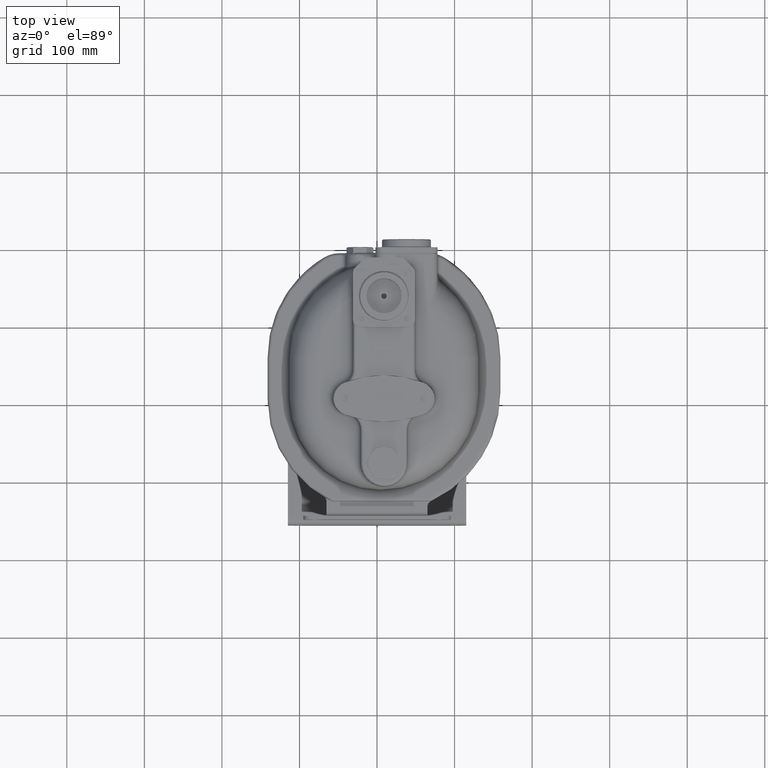
[diagram: clean part render]
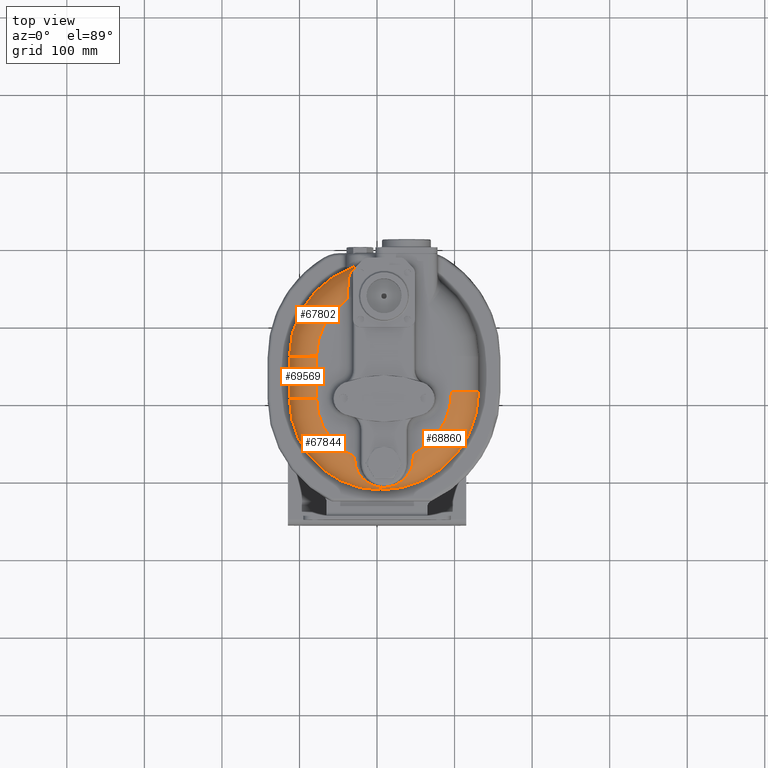
[diagram: same view with one multi-face feature highlighted, each face labeled with its STEP entity id]
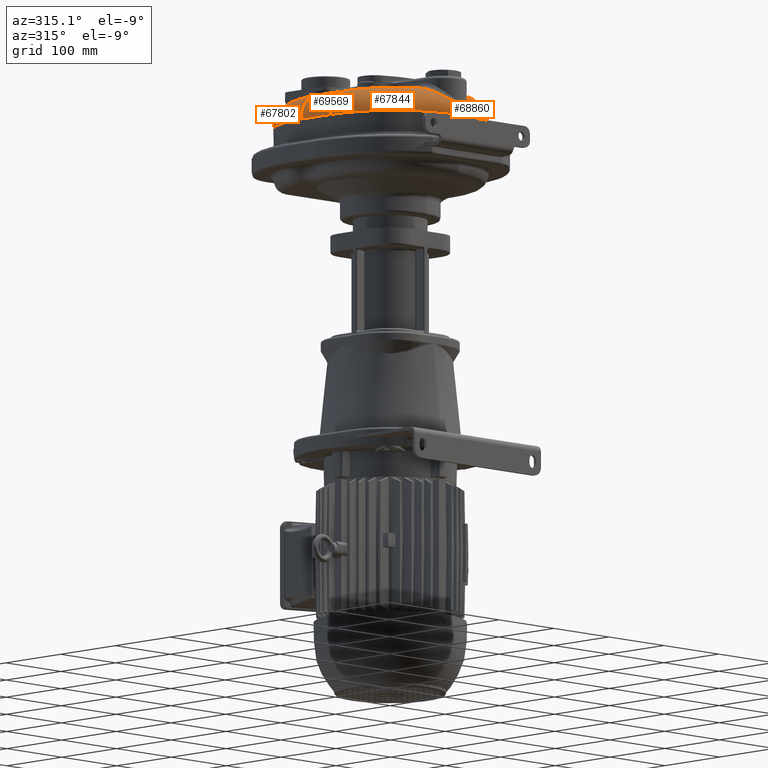
[diagram: same view with one multi-face feature highlighted, each face labeled with its STEP entity id]
A machine part, top view. The highlighted faces form ONE feature: a constant-radius fillet chain: 4 tangent blend faces with common blend radius 35 mm. The faces share edges in the B-rep.
A second angle (auxiliary view) of the same feature is appended — it is thin or edge-on in the first view.
Their STEP definitions:
[1] entity #69569 (Cylinder):
#11907=DIRECTION('',(0.E0,-1.E0,0.E0));
#11908=VECTOR('',#11907,5.45E1);
#11909=CARTESIAN_POINT('',(-7.8E1,5.E1,7.9E1));
#11910=LINE('',#11909,#11908);
#12002=CARTESIAN_POINT('',(-7.8E1,-4.5E0,4.4E1));
#12003=DIRECTION('',(0.E0,-1.E0,0.E0));
#12004=DIRECTION('',(0.E0,0.E0,1.E0));
#12005=AXIS2_PLACEMENT_3D('',#12002,#12003,#12004);
#13197=DIRECTION('',(0.E0,-1.E0,0.E0));
#13198=VECTOR('',#13197,5.45E1);
#13199=CARTESIAN_POINT('',(-1.13E2,5.E1,4.4E1));
#13200=LINE('',#13199,#13198);
#13294=CARTESIAN_POINT('',(-7.8E1,5.E1,4.4E1));
#13295=DIRECTION('',(0.E0,-1.E0,0.E0));
#13296=DIRECTION('',(0.E0,0.E0,1.E0));
#13297=AXIS2_PLACEMENT_3D('',#13294,#13295,#13296);
#45949=CARTESIAN_POINT('',(-1.13E2,-4.5E0,4.4E1));
#45950=VERTEX_POINT('',#45949);
#45951=CARTESIAN_POINT('',(-7.8E1,5.E1,7.9E1));
#45952=CARTESIAN_POINT('',(-7.8E1,-4.5E0,7.9E1));
#45953=VERTEX_POINT('',#45951);
#45954=VERTEX_POINT('',#45952);
#45955=CARTESIAN_POINT('',(-1.13E2,5.E1,4.4E1));
#45956=VERTEX_POINT('',#45955);
#69558=CARTESIAN_POINT('',(-7.8E1,5.00218436E1,4.4E1));
#69559=DIRECTION('',(0.E0,-1.E0,0.E0));
#69560=DIRECTION('',(0.E0,0.E0,1.E0));
#69561=AXIS2_PLACEMENT_3D('',#69558,#69559,#69560);
#69562=CYLINDRICAL_SURFACE('',#69561,3.5E1);
#69563=ORIENTED_EDGE('',*,*,#67810,.T.);
#69564=ORIENTED_EDGE('',*,*,#67840,.T.);
#69565=ORIENTED_EDGE('',*,*,#69231,.F.);
#69566=ORIENTED_EDGE('',*,*,#67791,.F.);
#69567=EDGE_LOOP('',(#69563,#69564,#69565,#69566));
#69568=FACE_OUTER_BOUND('',#69567,.F.);
#69569=ADVANCED_FACE('',(#69568),#69562,.T.);
#12006=CIRCLE('',#12005,3.5E1);
#13298=CIRCLE('',#13297,3.5E1);
#67791=EDGE_CURVE('',#45953,#45956,#13298,.T.);
#67810=EDGE_CURVE('',#45953,#45954,#11910,.T.);
#67840=EDGE_CURVE('',#45954,#45950,#12006,.T.);
#69231=EDGE_CURVE('',#45956,#45950,#13200,.T.);
[2] entity #67802 (Torus):
#11793=CARTESIAN_POINT('',(-2.966375237441E1,1.657113402054E2,4.4E1));
#11794=CARTESIAN_POINT('',(-2.966375236081E1,1.657113401667E2,
4.434957833842E1));
#11795=CARTESIAN_POINT('',(-2.966101336535E1,1.657012106064E2,
4.504874633726E1));
#11796=CARTESIAN_POINT('',(-2.964868928718E1,1.656556385600E2,
4.609659013645E1));
#11797=CARTESIAN_POINT('',(-2.962815736619E1,1.655797272717E2,
4.714258651501E1));
#11798=CARTESIAN_POINT('',(-2.959943065116E1,1.654735466195E2,
4.818576929881E1));
#11799=CARTESIAN_POINT('',(-2.956252766429E1,1.653371913621E2,
4.922521540629E1));
#11800=CARTESIAN_POINT('',(-2.951747190141E1,1.651707843868E2,
5.025999203339E1));
#11801=CARTESIAN_POINT('',(-2.946429225014E1,1.649744750210E2,
5.128917637721E1));
#11802=CARTESIAN_POINT('',(-2.940302279589E1,1.647484397740E2,
5.231184602211E1));
#11803=CARTESIAN_POINT('',(-2.933370600991E1,1.644928931323E2,
5.332704468145E1));
#11804=CARTESIAN_POINT('',(-2.925638588485E1,1.642080626150E2,
5.433388834581E1));
#11805=CARTESIAN_POINT('',(-2.917110723913E1,1.638941847211E2,
5.533153917670E1));
#11806=CARTESIAN_POINT('',(-2.910898696775E1,1.636657618676E2,
5.598989099765E1));
#11807=CARTESIAN_POINT('',(-2.907662046386E1,1.635468087233E2,
5.631723301976E1));
#11847=CARTESIAN_POINT('',(-3.679927425922E1,1.501859124420E2,
7.024320591176E1));
#11848=CARTESIAN_POINT('',(-3.678679080129E1,1.503833059043E2,
7.008936662543E1));
#11849=CARTESIAN_POINT('',(-3.675404578181E1,1.507809898017E2,
6.977582583773E1));
#11850=CARTESIAN_POINT('',(-3.668081801128E1,1.513854118228E2,
6.928784475528E1));
#11851=CARTESIAN_POINT('',(-3.658255649459E1,1.519976634908E2,
6.878150201866E1));
#11852=CARTESIAN_POINT('',(-3.645849701325E1,1.526164760535E2,
6.825707690721E1));
#11853=CARTESIAN_POINT('',(-3.630784293126E1,1.532410213371E2,
6.771450696850E1));
#11854=CARTESIAN_POINT('',(-3.612988250461E1,1.538701409345E2,
6.715402706200E1));
#11855=CARTESIAN_POINT('',(-3.592395811686E1,1.545026441071E2,
6.657593989711E1));
#11856=CARTESIAN_POINT('',(-3.568950169469E1,1.551371975189E2,
6.598072595652E1));
#11857=CARTESIAN_POINT('',(-3.542604698785E1,1.557723589549E2,
6.536903684485E1));
#11858=CARTESIAN_POINT('',(-3.513325521171E1,1.564065610338E2,
6.474173543882E1));
#11859=CARTESIAN_POINT('',(-3.481094208436E1,1.570381095218E2,
6.409992906651E1));
#11860=CARTESIAN_POINT('',(-3.445911347495E1,1.576651734967E2,
6.344501681936E1));
#11861=CARTESIAN_POINT('',(-3.407801243393E1,1.582857713564E2,
6.277874977549E1));
#11862=CARTESIAN_POINT('',(-3.366817999968E1,1.588977538211E2,
6.210330450572E1));
#11863=CARTESIAN_POINT('',(-3.323054062371E1,1.594987755904E2,
6.142138109702E1));
#11864=CARTESIAN_POINT('',(-3.276651193871E1,1.600862664021E2,
6.073631529242E1));
#11865=CARTESIAN_POINT('',(-3.227815604076E1,1.606573905109E2,
6.005221733635E1));
#11866=CARTESIAN_POINT('',(-3.176833786282E1,1.612090419004E2,
5.937407502138E1));
#11867=CARTESIAN_POINT('',(-3.124096160516E1,1.617378006045E2,
5.870790053412E1));
#11868=CARTESIAN_POINT('',(-3.070108910804E1,1.622400519131E2,
5.806064414154E1));
#11869=CARTESIAN_POINT('',(-3.015494719204E1,1.627121908599E2,
5.743992744125E1));
#11870=CARTESIAN_POINT('',(-2.960998711353E1,1.631506945152E2,
5.685381569152E1));
#11871=CARTESIAN_POINT('',(-2.925333163477E1,1.634184140525E2,
5.649157911724E1));
#11872=CARTESIAN_POINT('',(-2.907662046386E1,1.635468087233E2,
5.631723301976E1));
#11874=CARTESIAN_POINT('',(-3.9E1,1.225603197348E2,7.9E1));
#11875=CARTESIAN_POINT('',(-3.895126608389E1,1.230559121598E2,
7.899999997724E1));
#11876=CARTESIAN_POINT('',(-3.885590399843E1,1.240367674880E2,
7.898718471487E1));
#11877=CARTESIAN_POINT('',(-3.871924204616E1,1.254740125687E2,
7.893093955727E1));
#11878=CARTESIAN_POINT('',(-3.858846041353E1,1.268799581375E2,
7.883896024371E1));
#11879=CARTESIAN_POINT('',(-3.846326110825E1,1.282554497111E2,
7.871242770215E1));
#11880=CARTESIAN_POINT('',(-3.834332879766E1,1.296016208048E2,
7.855242723732E1));
#11881=CARTESIAN_POINT('',(-3.822839045164E1,1.309192868268E2,
7.835997035427E1));
#11882=CARTESIAN_POINT('',(-3.811819132890E1,1.322091792597E2,
7.813600100963E1));
#11883=CARTESIAN_POINT('',(-3.801249891054E1,1.334718966573E2,
7.788140805897E1));
#11884=CARTESIAN_POINT('',(-3.791109889812E1,1.347079381183E2,
7.759703322424E1));
#11885=CARTESIAN_POINT('',(-3.781379367657E1,1.359177124953E2,
7.728367837305E1));
#11886=CARTESIAN_POINT('',(-3.772040041433E1,1.371015517605E2,
7.694211142033E1));
#11887=CARTESIAN_POINT('',(-3.763074960528E1,1.382597206291E2,
7.657307146579E1));
#11888=CARTESIAN_POINT('',(-3.754468391295E1,1.393924253905E2,
7.617727308662E1));
#11889=CARTESIAN_POINT('',(-3.746205692959E1,1.404998213283E2,
7.575541007652E1));
#11890=CARTESIAN_POINT('',(-3.738273222751E1,1.415820191490E2,
7.530815866745E1));
#11891=CARTESIAN_POINT('',(-3.730658247146E1,1.426390908407E2,
7.483618016824E1));
#11892=CARTESIAN_POINT('',(-3.723348871801E1,1.436710737335E2,
7.434012381088E1));
#11893=CARTESIAN_POINT('',(-3.716333953477E1,1.446779777396E2,
7.382062727679E1));
#11894=CARTESIAN_POINT('',(-3.709603100248E1,1.456597805700E2,
7.327832312476E1));
#11895=CARTESIAN_POINT('',(-3.703146560179E1,1.466164386239E2,
7.271383677142E1));
#11896=CARTESIAN_POINT('',(-3.696955216743E1,1.475478856268E2,
7.212779144614E1));
#11897=CARTESIAN_POINT('',(-3.691020302553E1,1.484540654136E2,
7.152078688202E1));
#11898=CARTESIAN_POINT('',(-3.685334140992E1,1.493348354245E2,
7.089347246838E1));
#11899=CARTESIAN_POINT('',(-3.681703395525E1,1.499051039739E2,
7.046205458103E1));
#11900=CARTESIAN_POINT('',(-3.679927425922E1,1.501859124420E2,
7.024320591176E1));
#11911=CARTESIAN_POINT('',(9.E0,5.E1,7.9E1));
#11912=DIRECTION('',(0.E0,0.E0,1.E0));
#11913=DIRECTION('',(-5.517241379280E-1,8.340266636191E-1,0.E0));
#11914=AXIS2_PLACEMENT_3D('',#11911,#11912,#11913);
#13254=CARTESIAN_POINT('',(9.E0,5.E1,4.4E1));
#13255=DIRECTION('',(0.E0,0.E0,1.E0));
#13256=DIRECTION('',(-3.169160030710E-1,9.484536082474E-1,0.E0));
#13257=AXIS2_PLACEMENT_3D('',#13254,#13255,#13256);
#13294=CARTESIAN_POINT('',(-7.8E1,5.E1,4.4E1));
#13295=DIRECTION('',(0.E0,-1.E0,0.E0));
#13296=DIRECTION('',(0.E0,0.E0,1.E0));
#13297=AXIS2_PLACEMENT_3D('',#13294,#13295,#13296);
#45951=CARTESIAN_POINT('',(-7.8E1,5.E1,7.9E1));
#45953=VERTEX_POINT('',#45951);
#45955=CARTESIAN_POINT('',(-1.13E2,5.E1,4.4E1));
#45956=VERTEX_POINT('',#45955);
#45957=CARTESIAN_POINT('',(-2.966375237466E1,1.657113402062E2,4.4E1));
#45958=VERTEX_POINT('',#45957);
#45963=CARTESIAN_POINT('',(-3.899999999974E1,1.225603197349E2,7.9E1));
#45964=VERTEX_POINT('',#45963);
#45965=VERTEX_POINT('',#11807);
#46076=VERTEX_POINT('',#11900);
#67784=CARTESIAN_POINT('',(9.E0,5.E1,4.4E1));
#67785=DIRECTION('',(0.E0,0.E0,-1.E0));
#67786=DIRECTION('',(8.129831895587E-1,-5.822871572472E-1,0.E0));
#67787=AXIS2_PLACEMENT_3D('',#67784,#67785,#67786);
#67788=TOROIDAL_SURFACE('',#67787,8.7E1,3.5E1);
#67790=ORIENTED_EDGE('',*,*,#67789,.T.);
#67792=ORIENTED_EDGE('',*,*,#67791,.T.);
#67794=ORIENTED_EDGE('',*,*,#67793,.F.);
#67795=ORIENTED_EDGE('',*,*,#67772,.T.);
#67797=ORIENTED_EDGE('',*,*,#67796,.F.);
#67799=ORIENTED_EDGE('',*,*,#67798,.F.);
#67800=EDGE_LOOP('',(#67790,#67792,#67794,#67795,#67797,#67799));
#67801=FACE_OUTER_BOUND('',#67800,.F.);
#67802=ADVANCED_FACE('',(#67801),#67788,.T.);
#11808=B_SPLINE_CURVE_WITH_KNOTS('',3,(#11793,#11794,#11795,#11796,#11797,
#11798,#11799,#11800,#11801,#11802,#11803,#11804,#11805,#11806,#11807),
.UNSPECIFIED.,.F.,.F.,(4,1,1,1,1,1,1,1,1,1,1,1,4),(0.E0,8.333333333333E-2,
1.666666666667E-1,2.5E-1,3.333333333333E-1,4.166666666667E-1,5.E-1,
5.833333333333E-1,6.666666666667E-1,7.5E-1,8.333333333333E-1,9.166666666667E-1,
1.E0),.UNSPECIFIED.);
#11873=B_SPLINE_CURVE_WITH_KNOTS('',3,(#11847,#11848,#11849,#11850,#11851,
#11852,#11853,#11854,#11855,#11856,#11857,#11858,#11859,#11860,#11861,#11862,
#11863,#11864,#11865,#11866,#11867,#11868,#11869,#11870,#11871,#11872),
.UNSPECIFIED.,.F.,.F.,(4,1,1,1,1,1,1,1,1,1,1,1,1,1,1,1,1,1,1,1,1,1,1,4),(0.E0,
4.347826086957E-2,8.695652173913E-2,1.304347826087E-1,1.739130434783E-1,
2.173913043478E-1,2.608695652174E-1,3.043478260870E-1,3.478260869565E-1,
3.913043478261E-1,4.347826086957E-1,4.782608695652E-1,5.217391304348E-1,
5.652173913043E-1,6.086956521739E-1,6.521739130435E-1,6.956521739130E-1,
7.391304347826E-1,7.826086956522E-1,8.260869565217E-1,8.695652173913E-1,
9.130434782609E-1,9.565217391304E-1,1.E0),.UNSPECIFIED.);
#11901=B_SPLINE_CURVE_WITH_KNOTS('',3,(#11874,#11875,#11876,#11877,#11878,
#11879,#11880,#11881,#11882,#11883,#11884,#11885,#11886,#11887,#11888,#11889,
#11890,#11891,#11892,#11893,#11894,#11895,#11896,#11897,#11898,#11899,#11900),
.UNSPECIFIED.,.F.,.F.,(4,1,1,1,1,1,1,1,1,1,1,1,1,1,1,1,1,1,1,1,1,1,1,1,4),(0.E0,
4.166666666667E-2,8.333333333333E-2,1.25E-1,1.666666666667E-1,2.083333333333E-1,
2.5E-1,2.916666666667E-1,3.333333333333E-1,3.75E-1,4.166666666667E-1,
4.583333333333E-1,5.E-1,5.416666666667E-1,5.833333333333E-1,6.25E-1,
6.666666666667E-1,7.083333333333E-1,7.5E-1,7.916666666667E-1,8.333333333333E-1,
8.75E-1,9.166666666667E-1,9.583333333333E-1,1.E0),.UNSPECIFIED.);
#11915=CIRCLE('',#11914,8.7E1);
#13258=CIRCLE('',#13257,1.22E2);
#13298=CIRCLE('',#13297,3.5E1);
#67772=EDGE_CURVE('',#45958,#45965,#11808,.T.);
#67789=EDGE_CURVE('',#45964,#45953,#11915,.T.);
#67791=EDGE_CURVE('',#45953,#45956,#13298,.T.);
#67793=EDGE_CURVE('',#45958,#45956,#13258,.T.);
#67796=EDGE_CURVE('',#46076,#45965,#11873,.T.);
#67798=EDGE_CURVE('',#45964,#46076,#11901,.T.);
[3] entity #67844 (Torus):
#11902=CARTESIAN_POINT('',(4.5E0,-4.5E0,7.9E1));
#11903=DIRECTION('',(0.E0,0.E0,1.E0));
#11904=DIRECTION('',(-1.E0,0.E0,0.E0));
#11905=AXIS2_PLACEMENT_3D('',#11902,#11903,#11904);
#11939=CARTESIAN_POINT('',(-2.848256080268E1,-8.671026349326E1,
7.846790278080E1));
#11940=CARTESIAN_POINT('',(-2.850827826078E1,-8.634487568833E1,
7.852602979515E1));
#11941=CARTESIAN_POINT('',(-2.856066412844E1,-8.560927043133E1,
7.863311016777E1));
#11942=CARTESIAN_POINT('',(-2.864213432199E1,-8.449248890311E1,
7.876561094780E1));
#11943=CARTESIAN_POINT('',(-2.872662657921E1,-8.336235053312E1,
7.886955658780E1));
#11944=CARTESIAN_POINT('',(-2.881425466379E1,-8.221913407429E1,
7.894445252807E1));
#11945=CARTESIAN_POINT('',(-2.890513505456E1,-8.106313141486E1,
7.898980401267E1));
#11946=CARTESIAN_POINT('',(-2.896799567920E1,-8.028386591820E1,
7.899999997499E1));
#11947=CARTESIAN_POINT('',(-2.9E1,-7.989230730004E1,7.9E1));
#11949=CARTESIAN_POINT('',(4.5E0,-1.185265445612E2,5.920121666288E1));
#11950=CARTESIAN_POINT('',(4.226115062514E0,-1.184982777384E2,5.925984059E1));
#11951=CARTESIAN_POINT('',(3.671470978866E0,-1.184352061136E2,
5.938572097623E1));
#11952=CARTESIAN_POINT('',(2.820421399924E0,-1.183197505748E2,
5.960086163765E1));
#11953=CARTESIAN_POINT('',(1.948279096699E0,-1.181816542219E2,
5.984352510499E1));
#11954=CARTESIAN_POINT('',(1.054040203479E0,-1.180190134652E2,
6.011471702439E1));
#11955=CARTESIAN_POINT('',(1.372095045676E-1,-1.178298301294E2,
6.041524933538E1));
#11956=CARTESIAN_POINT('',(-8.021415508639E-1,-1.176120526962E2,
6.074567436582E1));
#11957=CARTESIAN_POINT('',(-1.763187988150E0,-1.173636817115E2,
6.110614875764E1));
#11958=CARTESIAN_POINT('',(-2.744317712483E0,-1.170828632679E2,
6.149634819310E1));
#11959=CARTESIAN_POINT('',(-3.743100575503E0,-1.167679981997E2,
6.191538967154E1));
#11960=CARTESIAN_POINT('',(-4.756334921465E0,-1.164178422245E2,
6.236179653047E1));
#11961=CARTESIAN_POINT('',(-5.780181633459E0,-1.160315773905E2,
6.283352207558E1));
#11962=CARTESIAN_POINT('',(-6.810347660195E0,-1.156088509274E2,
6.332802250607E1));
#11963=CARTESIAN_POINT('',(-7.842310517549E0,-1.151497705996E2,
6.384237648096E1));
#11964=CARTESIAN_POINT('',(-8.871509186980E0,-1.146548796942E2,
6.437341130794E1));
#11965=CARTESIAN_POINT('',(-9.893542136562E0,-1.141250930695E2,
6.491784824985E1));
#11966=CARTESIAN_POINT('',(-1.090430744614E1,-1.135616243856E2,
6.547242733437E1));
#11967=CARTESIAN_POINT('',(-1.190008823120E1,-1.129659142075E2,
6.603400408836E1));
#11968=CARTESIAN_POINT('',(-1.287759250771E1,-1.123395649290E2,
6.659961698876E1));
#11969=CARTESIAN_POINT('',(-1.383395837097E1,-1.116842860366E2,
6.716652816655E1));
#11970=CARTESIAN_POINT('',(-1.476673210077E1,-1.110018534780E2,
6.773224012641E1));
#11971=CARTESIAN_POINT('',(-1.567383582786E1,-1.102940780994E2,
6.829449817027E1));
#11972=CARTESIAN_POINT('',(-1.655352842160E1,-1.095627836769E2,
6.885128172627E1));
#11973=CARTESIAN_POINT('',(-1.740436631622E1,-1.088097914440E2,
6.940078989370E1));
#11974=CARTESIAN_POINT('',(-1.822516693839E1,-1.080369093571E2,
6.994142420978E1));
#11975=CARTESIAN_POINT('',(-1.901497668191E1,-1.072459239937E2,
7.047177110014E1));
#11976=CARTESIAN_POINT('',(-1.977304256420E1,-1.064385950992E2,
7.099058444835E1));
#11977=CARTESIAN_POINT('',(-2.049878879832E1,-1.056166506505E2,
7.149676989094E1));
#11978=CARTESIAN_POINT('',(-2.119179670381E1,-1.047817829249E2,
7.198937040137E1));
#11979=CARTESIAN_POINT('',(-2.185178785422E1,-1.039356448297E2,
7.246755352029E1));
#11980=CARTESIAN_POINT('',(-2.247860988741E1,-1.030798462249E2,
7.293060016483E1));
#11981=CARTESIAN_POINT('',(-2.307222413142E1,-1.022159505686E2,
7.337789462954E1));
#11982=CARTESIAN_POINT('',(-2.363269495003E1,-1.013454714108E2,
7.380891585703E1));
#11983=CARTESIAN_POINT('',(-2.416018018847E1,-1.004698690484E2,
7.422322962089E1));
#11984=CARTESIAN_POINT('',(-2.465492248879E1,-9.959054731162E1,
7.462048149774E1));
#11985=CARTESIAN_POINT('',(-2.511724125377E1,-9.870885051871E1,
7.500039048524E1));
#11986=CARTESIAN_POINT('',(-2.554752518826E1,-9.782606039799E1,
7.536274323112E1));
#11987=CARTESIAN_POINT('',(-2.594622484367E1,-9.694339394895E1,
7.570738838527E1));
#11988=CARTESIAN_POINT('',(-2.631384579294E1,-9.606200090260E1,
7.603423158016E1));
#11989=CARTESIAN_POINT('',(-2.665094181505E1,-9.518296181496E1,
7.634323051774E1));
#11990=CARTESIAN_POINT('',(-2.695810817864E1,-9.430728675394E1,
7.663439018671E1));
#11991=CARTESIAN_POINT('',(-2.723597516915E1,-9.343591405131E1,
7.690775833498E1));
#11992=CARTESIAN_POINT('',(-2.748520160370E1,-9.256971023034E1,
7.716342088112E1));
#11993=CARTESIAN_POINT('',(-2.770646888569E1,-9.170946803803E1,
7.740149794742E1));
#11994=CARTESIAN_POINT('',(-2.790047379174E1,-9.085591356641E1,
7.762213807920E1));
#11995=CARTESIAN_POINT('',(-2.806792612393E1,-9.000968468790E1,
7.782551886647E1));
#11996=CARTESIAN_POINT('',(-2.820953303797E1,-8.917139992701E1,
7.801182875420E1));
#11997=CARTESIAN_POINT('',(-2.832601876982E1,-8.834147249901E1,
7.818130046457E1));
#11998=CARTESIAN_POINT('',(-2.841806267560E1,-8.752058136435E1,
7.833411746340E1));
#11999=CARTESIAN_POINT('',(-2.846362409827E1,-8.697930573591E1,
7.842510270671E1));
#12000=CARTESIAN_POINT('',(-2.848256080268E1,-8.671026349326E1,
7.846790278080E1));
#12002=CARTESIAN_POINT('',(-7.8E1,-4.5E0,4.4E1));
#12003=DIRECTION('',(0.E0,-1.E0,0.E0));
#12004=DIRECTION('',(0.E0,0.E0,1.E0));
#12005=AXIS2_PLACEMENT_3D('',#12002,#12003,#12004);
#12999=CARTESIAN_POINT('',(4.5E0,-8.7E1,4.4E1));
#13000=DIRECTION('',(1.E0,0.E0,0.E0));
#13001=DIRECTION('',(0.E0,-9.007584160338E-1,4.343204760822E-1));
#13002=AXIS2_PLACEMENT_3D('',#12999,#13000,#13001);
#13067=CARTESIAN_POINT('',(4.5E0,-1.185265445612E2,5.920121666288E1));
#13184=CARTESIAN_POINT('',(4.5E0,-4.5E0,4.4E1));
#13185=DIRECTION('',(0.E0,0.E0,1.E0));
#13186=DIRECTION('',(-1.E0,0.E0,0.E0));
#13187=AXIS2_PLACEMENT_3D('',#13184,#13185,#13186);
#45947=CARTESIAN_POINT('',(4.5E0,-1.22E2,4.4E1));
#45948=VERTEX_POINT('',#45947);
#45949=CARTESIAN_POINT('',(-1.13E2,-4.5E0,4.4E1));
#45950=VERTEX_POINT('',#45949);
#45952=CARTESIAN_POINT('',(-7.8E1,-4.5E0,7.9E1));
#45954=VERTEX_POINT('',#45952);
#45961=CARTESIAN_POINT('',(-2.899999999977E1,-7.989230729998E1,7.9E1));
#45962=VERTEX_POINT('',#45961);
#46058=VERTEX_POINT('',#13067);
#46059=VERTEX_POINT('',#12000);
#67826=CARTESIAN_POINT('',(4.5E0,-4.5E0,4.4E1));
#67827=DIRECTION('',(0.E0,0.E0,-1.E0));
#67828=DIRECTION('',(-9.999999827200E-1,1.859029776520E-4,0.E0));
#67829=AXIS2_PLACEMENT_3D('',#67826,#67827,#67828);
#67830=TOROIDAL_SURFACE('',#67829,8.25E1,3.5E1);
#67831=ORIENTED_EDGE('',*,*,#67808,.T.);
#67833=ORIENTED_EDGE('',*,*,#67832,.F.);
#67835=ORIENTED_EDGE('',*,*,#67834,.F.);
#67837=ORIENTED_EDGE('',*,*,#67836,.T.);
#67839=ORIENTED_EDGE('',*,*,#67838,.F.);
#67841=ORIENTED_EDGE('',*,*,#67840,.F.);
#67842=EDGE_LOOP('',(#67831,#67833,#67835,#67837,#67839,#67841));
#67843=FACE_OUTER_BOUND('',#67842,.F.);
#67844=ADVANCED_FACE('',(#67843),#67830,.T.);
#11906=CIRCLE('',#11905,8.25E1);
#11948=B_SPLINE_CURVE_WITH_KNOTS('',3,(#11939,#11940,#11941,#11942,#11943,
#11944,#11945,#11946,#11947),.UNSPECIFIED.,.F.,.F.,(4,1,1,1,1,1,4),(0.E0,
1.666666666667E-1,3.333333333333E-1,5.E-1,6.666666666667E-1,8.333333333333E-1,
1.E0),.UNSPECIFIED.);
#12001=B_SPLINE_CURVE_WITH_KNOTS('',3,(#11949,#11950,#11951,#11952,#11953,
#11954,#11955,#11956,#11957,#11958,#11959,#11960,#11961,#11962,#11963,#11964,
#11965,#11966,#11967,#11968,#11969,#11970,#11971,#11972,#11973,#11974,#11975,
#11976,#11977,#11978,#11979,#11980,#11981,#11982,#11983,#11984,#11985,#11986,
#11987,#11988,#11989,#11990,#11991,#11992,#11993,#11994,#11995,#11996,#11997,
#11998,#11999,#12000),.UNSPECIFIED.,.F.,.F.,(4,1,1,1,1,1,1,1,1,1,1,1,1,1,1,1,1,
1,1,1,1,1,1,1,1,1,1,1,1,1,1,1,1,1,1,1,1,1,1,1,1,1,1,1,1,1,1,1,1,4),(0.E0,
2.040816326531E-2,4.081632653061E-2,6.122448979592E-2,8.163265306122E-2,
1.020408163265E-1,1.224489795918E-1,1.428571428571E-1,1.632653061224E-1,
1.836734693878E-1,2.040816326531E-1,2.244897959184E-1,2.448979591837E-1,
2.653061224490E-1,2.857142857143E-1,3.061224489796E-1,3.265306122449E-1,
3.469387755102E-1,3.673469387755E-1,3.877551020408E-1,4.081632653061E-1,
4.285714285714E-1,4.489795918367E-1,4.693877551020E-1,4.897959183673E-1,
5.102040816327E-1,5.306122448980E-1,5.510204081633E-1,5.714285714286E-1,
5.918367346939E-1,6.122448979592E-1,6.326530612245E-1,6.530612244898E-1,
6.734693877551E-1,6.938775510204E-1,7.142857142857E-1,7.346938775510E-1,
7.551020408163E-1,7.755102040816E-1,7.959183673469E-1,8.163265306122E-1,
8.367346938776E-1,8.571428571429E-1,8.775510204082E-1,8.979591836735E-1,
9.183673469388E-1,9.387755102041E-1,9.591836734694E-1,9.795918367347E-1,1.E0),
.UNSPECIFIED.);
#12006=CIRCLE('',#12005,3.5E1);
#13003=CIRCLE('',#13002,3.5E1);
#13188=CIRCLE('',#13187,1.175E2);
#67808=EDGE_CURVE('',#45954,#45962,#11906,.T.);
#67832=EDGE_CURVE('',#46059,#45962,#11948,.T.);
#67834=EDGE_CURVE('',#46058,#46059,#12001,.T.);
#67836=EDGE_CURVE('',#46058,#45948,#13003,.T.);
#67838=EDGE_CURVE('',#45950,#45948,#13188,.T.);
#67840=EDGE_CURVE('',#45954,#45950,#12006,.T.);
[4] entity #68860 (Torus):
#11322=CARTESIAN_POINT('',(4.5E0,4.5E0,7.9E1));
#11323=DIRECTION('',(0.E0,0.E0,1.E0));
#11324=DIRECTION('',(4.644808743149E-1,-8.855831510342E-1,0.E0));
#11325=AXIS2_PLACEMENT_3D('',#11322,#11323,#11324);
#12999=CARTESIAN_POINT('',(4.5E0,-8.7E1,4.4E1));
#13000=DIRECTION('',(1.E0,0.E0,0.E0));
#13001=DIRECTION('',(0.E0,-9.007584160338E-1,4.343204760822E-1));
#13002=AXIS2_PLACEMENT_3D('',#12999,#13000,#13001);
#13004=CARTESIAN_POINT('',(4.620023547849E1,-8.625933604142E1,
7.798180130472E1));
#13005=CARTESIAN_POINT('',(4.617928423324E1,-8.653776484014E1,
7.792156197644E1));
#13006=CARTESIAN_POINT('',(4.612927418949E1,-8.709811102056E1,
7.779541235835E1));
#13007=CARTESIAN_POINT('',(4.602922051985E1,-8.794843420816E1,
7.758900466919E1));
#13008=CARTESIAN_POINT('',(4.590328986622E1,-8.880864348120E1,
7.736505306068E1));
#13009=CARTESIAN_POINT('',(4.575073276721E1,-8.967791185695E1,
7.712341690497E1));
#13010=CARTESIAN_POINT('',(4.557074757975E1,-9.055575559138E1,
7.686387739588E1));
#13011=CARTESIAN_POINT('',(4.536256172341E1,-9.144144270958E1,
7.658628830675E1));
#13012=CARTESIAN_POINT('',(4.512540482856E1,-9.233422668940E1,
7.629052067302E1));
#13013=CARTESIAN_POINT('',(4.485852890768E1,-9.323325926520E1,
7.597649070797E1));
#13014=CARTESIAN_POINT('',(4.456121028216E1,-9.413761929663E1,
7.564415696204E1));
#13015=CARTESIAN_POINT('',(4.423275861969E1,-9.504630300315E1,
7.529352847199E1));
#13016=CARTESIAN_POINT('',(4.387252391009E1,-9.595822713133E1,
7.492466958585E1));
#13017=CARTESIAN_POINT('',(4.347990445091E1,-9.687222888657E1,
7.453770610623E1));
#13018=CARTESIAN_POINT('',(4.305435482311E1,-9.778706755075E1,7.413283133E1));
#13019=CARTESIAN_POINT('',(4.259539472468E1,-9.870142529490E1,
7.371031295822E1));
#13020=CARTESIAN_POINT('',(4.210261782775E1,-9.961390944273E1,
7.327050002844E1));
#13021=CARTESIAN_POINT('',(4.157570152121E1,-1.005230543581E2,
7.281383071599E1));
#13022=CARTESIAN_POINT('',(4.101441755743E1,-1.014273234746E2,
7.234084094242E1));
#13023=CARTESIAN_POINT('',(4.041864362167E1,-1.023251117400E2,
7.185217376250E1));
#13024=CARTESIAN_POINT('',(3.978837673975E1,-1.032147475136E2,
7.134859019566E1));
#13025=CARTESIAN_POINT('',(3.912374842699E1,-1.040944947898E2,
7.083098124106E1));
#13026=CARTESIAN_POINT('',(3.842504264161E1,-1.049625549746E2,
7.030038169353E1));
#13027=CARTESIAN_POINT('',(3.769271681244E1,-1.058170688452E2,
6.975798561173E1));
#13028=CARTESIAN_POINT('',(3.692742732190E1,-1.066561181205E2,
6.920516398051E1));
#13029=CARTESIAN_POINT('',(3.613005899611E1,-1.074777283586E2,
6.864348357615E1));
#13030=CARTESIAN_POINT('',(3.530176098391E1,-1.082798718366E2,
6.807472786893E1));
#13031=CARTESIAN_POINT('',(3.444398696579E1,-1.090604738861E2,
6.750091732786E1));
#13032=CARTESIAN_POINT('',(3.355854085844E1,-1.098174222566E2,
6.692432859352E1));
#13033=CARTESIAN_POINT('',(3.264762446598E1,-1.105485831817E2,
6.634750849065E1));
#13034=CARTESIAN_POINT('',(3.171388290918E1,-1.112518266828E2,
6.577327854990E1));
#13035=CARTESIAN_POINT('',(3.076043918452E1,-1.119250651774E2,
6.520472327609E1));
#13036=CARTESIAN_POINT('',(2.979090881341E1,-1.125663069528E2,
6.464515613304E1));
#13037=CARTESIAN_POINT('',(2.880937663846E1,-1.131737289667E2,
6.409805367762E1));
#13038=CARTESIAN_POINT('',(2.782032377195E1,-1.137457651667E2,
6.356695487499E1));
#13039=CARTESIAN_POINT('',(2.682849760814E1,-1.142812022391E2,
6.305532835478E1));
#13040=CARTESIAN_POINT('',(2.583871419047E1,-1.147792764958E2,
6.256641164853E1));
#13041=CARTESIAN_POINT('',(2.485562087443E1,-1.152397469333E2,
6.210304927699E1));
#13042=CARTESIAN_POINT('',(2.388346950778E1,-1.156629213397E2,
6.166756284267E1));
#13043=CARTESIAN_POINT('',(2.292588884467E1,-1.160496489013E2,
6.126165293136E1));
#13044=CARTESIAN_POINT('',(2.198572971491E1,-1.164012583812E2,
6.088636769513E1));
#13045=CARTESIAN_POINT('',(2.106498572315E1,-1.167194607164E2,
6.054213102712E1));
#13046=CARTESIAN_POINT('',(2.016480150579E1,-1.170062286761E2,
6.022882314081E1));
#13047=CARTESIAN_POINT('',(1.928554087706E1,-1.172636758758E2,
5.994589063811E1));
#13048=CARTESIAN_POINT('',(1.842689740768E1,-1.174939486498E2,
5.969246587245E1));
#13049=CARTESIAN_POINT('',(1.758800011679E1,-1.176991429902E2,
5.946747645045E1));
#13050=CARTESIAN_POINT('',(1.676758557717E1,-1.178812272906E2,
5.926975917172E1));
#13051=CARTESIAN_POINT('',(1.596410102465E1,-1.180420049800E2,
5.909813396007E1));
#13052=CARTESIAN_POINT('',(1.517569162599E1,-1.181831081439E2,
5.895144531515E1));
#13053=CARTESIAN_POINT('',(1.440033917567E1,-1.183059664090E2,
5.882862832798E1));
#13054=CARTESIAN_POINT('',(1.363592688908E1,-1.184118015819E2,
5.872874216606E1));
#13055=CARTESIAN_POINT('',(1.288027446078E1,-1.185016296212E2,
5.865099150373E1));
#13056=CARTESIAN_POINT('',(1.213116396730E1,-1.185762651461E2,
5.859474023248E1));
#13057=CARTESIAN_POINT('',(1.138635539913E1,-1.186363267792E2,
5.855951998356E1));
#13058=CARTESIAN_POINT('',(1.064359532169E1,-1.186822428706E2,
5.854503311395E1));
#13059=CARTESIAN_POINT('',(9.900620274434E0,-1.187142544997E2,
5.855115628849E1));
#13060=CARTESIAN_POINT('',(9.155157810541E0,-1.187324169710E2,
5.857794150846E1));
#13061=CARTESIAN_POINT('',(8.404924293103E0,-1.187365990400E2,
5.862561603134E1));
#13062=CARTESIAN_POINT('',(7.647646319137E0,-1.187264801599E2,
5.869457885543E1));
#13063=CARTESIAN_POINT('',(6.881027104668E0,-1.187015467578E2,
5.878539770954E1));
#13064=CARTESIAN_POINT('',(6.102789676314E0,-1.186610812470E2,
5.889880677412E1));
#13065=CARTESIAN_POINT('',(5.310775968011E0,-1.186041730273E2,
5.903566500933E1));
#13066=CARTESIAN_POINT('',(4.771903583504E0,-1.185544848021E2,
5.914327003672E1));
#13067=CARTESIAN_POINT('',(4.5E0,-1.185265445612E2,5.920121666288E1));
#13069=CARTESIAN_POINT('',(4.7E1,-7.653085831964E1,7.9E1));
#13070=CARTESIAN_POINT('',(4.696156459939E1,-7.695982414820E1,
7.899999998210E1));
#13071=CARTESIAN_POINT('',(4.688606853637E1,-7.781230571232E1,
7.898876018256E1));
#13072=CARTESIAN_POINT('',(4.677693883095E1,-7.907303419820E1,
7.893893536700E1));
#13073=CARTESIAN_POINT('',(4.667172841271E1,-8.031614512452E1,
7.885686931795E1));
#13074=CARTESIAN_POINT('',(4.657030200291E1,-8.154143950984E1,
7.874325901770E1));
#13075=CARTESIAN_POINT('',(4.647251632043E1,-8.274885361577E1,
7.859877716852E1));
#13076=CARTESIAN_POINT('',(4.637823719677E1,-8.393827636027E1,
7.842407031964E1));
#13077=CARTESIAN_POINT('',(4.628734619725E1,-8.510947320601E1,
7.821979091632E1));
#13078=CARTESIAN_POINT('',(4.622891524642E1,-8.587819411860E1,
7.806426307818E1));
#13079=CARTESIAN_POINT('',(4.620023547849E1,-8.625933604142E1,
7.798180130472E1));
#13081=CARTESIAN_POINT('',(9.6E1,4.5E0,4.4E1));
#13082=DIRECTION('',(0.E0,1.E0,0.E0));
#13083=DIRECTION('',(0.E0,0.E0,1.E0));
#13084=AXIS2_PLACEMENT_3D('',#13081,#13082,#13083);
#13174=CARTESIAN_POINT('',(4.5E0,4.5E0,4.4E1));
#13175=DIRECTION('',(0.E0,0.E0,1.E0));
#13176=DIRECTION('',(0.E0,-1.E0,0.E0));
#13177=AXIS2_PLACEMENT_3D('',#13174,#13175,#13176);
#45939=CARTESIAN_POINT('',(9.6E1,4.5E0,7.9E1));
#45941=VERTEX_POINT('',#45939);
#45943=CARTESIAN_POINT('',(1.31E2,4.5E0,4.4E1));
#45945=VERTEX_POINT('',#45943);
#45947=CARTESIAN_POINT('',(4.5E0,-1.22E2,4.4E1));
#45948=VERTEX_POINT('',#45947);
#45959=CARTESIAN_POINT('',(4.699999999981E1,-7.653085831963E1,7.9E1));
#45960=VERTEX_POINT('',#45959);
#46056=VERTEX_POINT('',#13079);
#46058=VERTEX_POINT('',#13067);
#68844=CARTESIAN_POINT('',(4.5E0,4.5E0,4.4E1));
#68845=DIRECTION('',(0.E0,0.E0,-1.E0));
#68846=DIRECTION('',(-1.726766789819E-4,-9.999999850914E-1,0.E0));
#68847=AXIS2_PLACEMENT_3D('',#68844,#68845,#68846);
#68848=TOROIDAL_SURFACE('',#68847,9.15E1,3.5E1);
#68849=ORIENTED_EDGE('',*,*,#67168,.T.);
#68851=ORIENTED_EDGE('',*,*,#68850,.T.);
#68853=ORIENTED_EDGE('',*,*,#68852,.F.);
#68854=ORIENTED_EDGE('',*,*,#67836,.F.);
#68856=ORIENTED_EDGE('',*,*,#68855,.F.);
#68857=ORIENTED_EDGE('',*,*,#68837,.F.);
#68858=EDGE_LOOP('',(#68849,#68851,#68853,#68854,#68856,#68857));
#68859=FACE_OUTER_BOUND('',#68858,.F.);
#68860=ADVANCED_FACE('',(#68859),#68848,.T.);
#11326=CIRCLE('',#11325,9.15E1);
#13003=CIRCLE('',#13002,3.5E1);
#13068=B_SPLINE_CURVE_WITH_KNOTS('',3,(#13004,#13005,#13006,#13007,#13008,
#13009,#13010,#13011,#13012,#13013,#13014,#13015,#13016,#13017,#13018,#13019,
#13020,#13021,#13022,#13023,#13024,#13025,#13026,#13027,#13028,#13029,#13030,
#13031,#13032,#13033,#13034,#13035,#13036,#13037,#13038,#13039,#13040,#13041,
#13042,#13043,#13044,#13045,#13046,#13047,#13048,#13049,#13050,#13051,#13052,
#13053,#13054,#13055,#13056,#13057,#13058,#13059,#13060,#13061,#13062,#13063,
#13064,#13065,#13066,#13067),.UNSPECIFIED.,.F.,.F.,(4,1,1,1,1,1,1,1,1,1,1,1,1,1,
1,1,1,1,1,1,1,1,1,1,1,1,1,1,1,1,1,1,1,1,1,1,1,1,1,1,1,1,1,1,1,1,1,1,1,1,1,1,1,1,
1,1,1,1,1,1,1,4),(0.E0,1.639344262295E-2,3.278688524590E-2,4.918032786885E-2,
6.557377049180E-2,8.196721311475E-2,9.836065573770E-2,1.147540983607E-1,
1.311475409836E-1,1.475409836066E-1,1.639344262295E-1,1.803278688525E-1,
1.967213114754E-1,2.131147540984E-1,2.295081967213E-1,2.459016393443E-1,
2.622950819672E-1,2.786885245902E-1,2.950819672131E-1,3.114754098361E-1,
3.278688524590E-1,3.442622950820E-1,3.606557377049E-1,3.770491803279E-1,
3.934426229508E-1,4.098360655738E-1,4.262295081967E-1,4.426229508197E-1,
4.590163934426E-1,4.754098360656E-1,4.918032786885E-1,5.081967213115E-1,
5.245901639344E-1,5.409836065574E-1,5.573770491803E-1,5.737704918033E-1,
5.901639344262E-1,6.065573770492E-1,6.229508196721E-1,6.393442622951E-1,
6.557377049180E-1,6.721311475410E-1,6.885245901639E-1,7.049180327869E-1,
7.213114754098E-1,7.377049180328E-1,7.540983606557E-1,7.704918032787E-1,
7.868852459016E-1,8.032786885246E-1,8.196721311475E-1,8.360655737705E-1,
8.524590163934E-1,8.688524590164E-1,8.852459016393E-1,9.016393442623E-1,
9.180327868852E-1,9.344262295082E-1,9.508196721311E-1,9.672131147541E-1,
9.836065573770E-1,1.E0),.UNSPECIFIED.);
#13080=B_SPLINE_CURVE_WITH_KNOTS('',3,(#13069,#13070,#13071,#13072,#13073,
#13074,#13075,#13076,#13077,#13078,#13079),.UNSPECIFIED.,.F.,.F.,(4,1,1,1,1,1,1,
1,4),(0.E0,1.25E-1,2.5E-1,3.75E-1,5.E-1,6.25E-1,7.5E-1,8.75E-1,1.E0),
.UNSPECIFIED.);
#13085=CIRCLE('',#13084,3.5E1);
#13178=CIRCLE('',#13177,1.265E2);
#67168=EDGE_CURVE('',#45960,#45941,#11326,.T.);
#67836=EDGE_CURVE('',#46058,#45948,#13003,.T.);
#68837=EDGE_CURVE('',#45960,#46056,#13080,.T.);
#68850=EDGE_CURVE('',#45941,#45945,#13085,.T.);
#68852=EDGE_CURVE('',#45948,#45945,#13178,.T.);
#68855=EDGE_CURVE('',#46056,#46058,#13068,.T.);